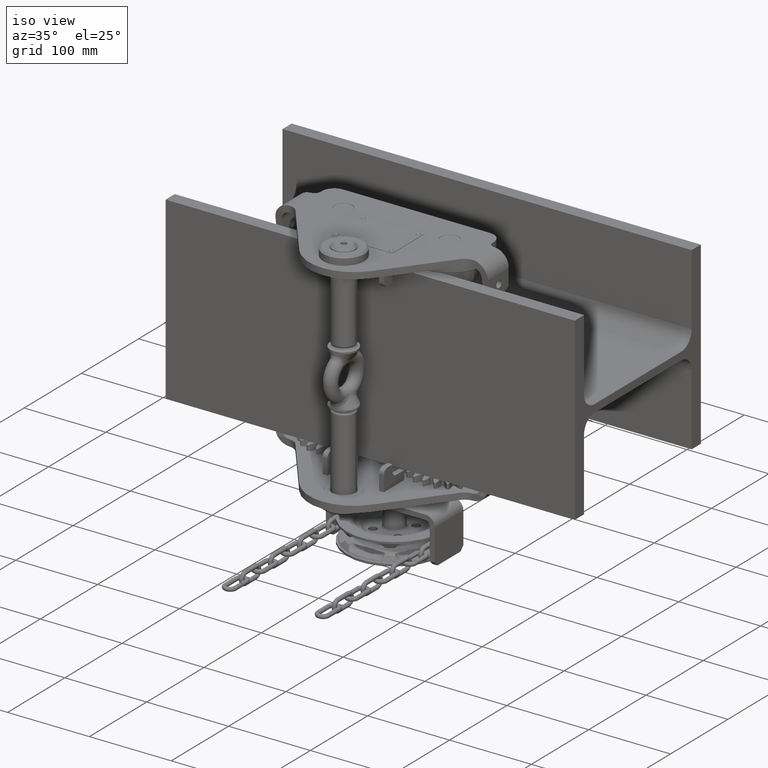
[diagram: clean part render]
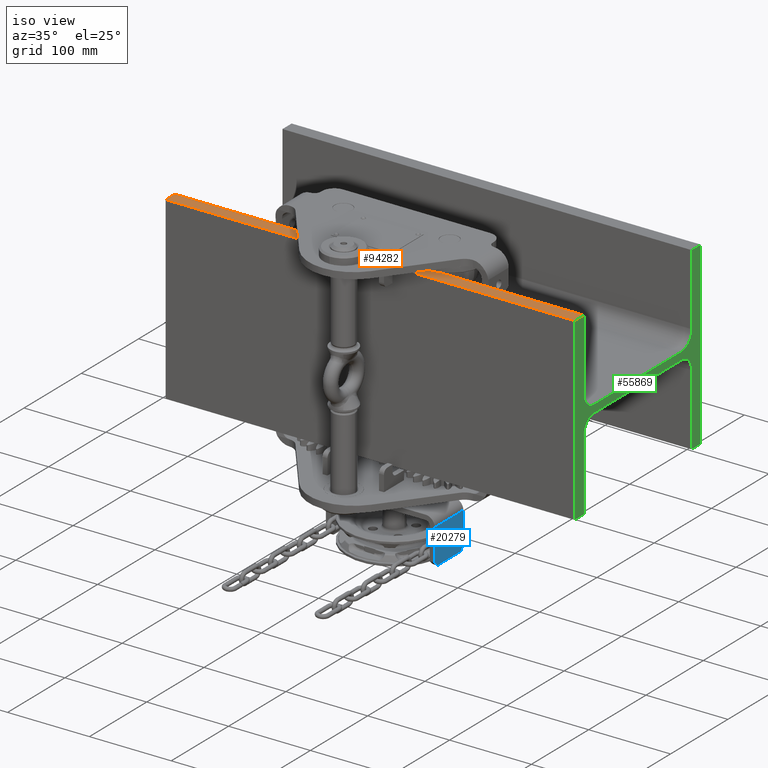
[diagram: same view with three faces highlighted in distinct colors, each labeled with its STEP entity id]
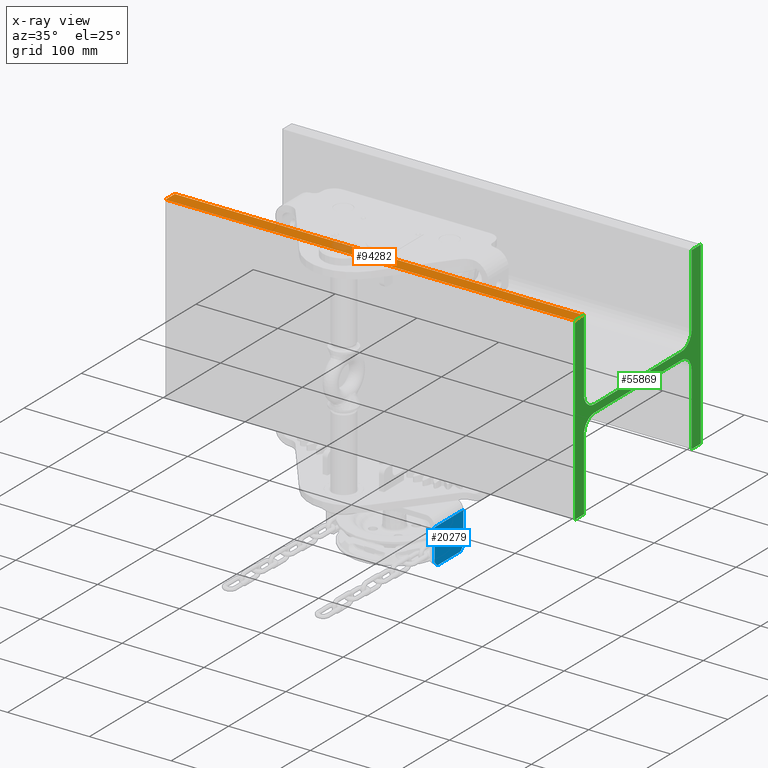
[diagram: x-ray of the same camera — body ghosted, the three highlighted faces saturated]
A machine part, iso view with three faces highlighted in distinct colors.
The next image is the same camera in x-ray (body ghosted, the three faces saturated) — at least one of them is partly hidden behind the body in this view.
Their STEP definitions:

[orange] entity #94282 — the highlighted planar face has unit normal (0, 0, -1).
#2354 = FACE_OUTER_BOUND ( 'NONE', #7073, .T. ) ;
#3253 = LINE ( 'NONE', #16034, #95396 ) ;
#3529 = DIRECTION ( 'NONE',  ( -1.670477943807616000E-049, 1.000000000000000000, 9.102935034118153400E-016 ) ) ;
#3831 = EDGE_CURVE ( 'NONE', #82990, #23652, #24799, .T. ) ;
#5879 = DIRECTION ( 'NONE',  ( -1.670477943807616000E-049, 1.000000000000000000, 9.102935034118149400E-016 ) ) ;
#6229 = CARTESIAN_POINT ( 'NONE',  ( -250.0000000000001100, -109.9999999999999100, 110.0000000000002800 ) ) ;
#6482 = AXIS2_PLACEMENT_3D ( 'NONE', #6229, #59022, #5879 ) ;
#7073 = EDGE_LOOP ( 'NONE', ( #58105, #8410, #90370, #23909 ) ) ;
#8410 = ORIENTED_EDGE ( 'NONE', *, *, #34158, .F. ) ;
#14800 = CARTESIAN_POINT ( 'NONE',  ( -250.0000000000001100, -109.9999999999999100, 110.0000000000002800 ) ) ;
#16034 = CARTESIAN_POINT ( 'NONE',  ( -250.0000000000001100, -93.99999999999985800, 110.0000000000003000 ) ) ;
#18897 = LINE ( 'NONE', #34588, #37061 ) ;
#23652 = VERTEX_POINT ( 'NONE', #37889 ) ;
#23909 = ORIENTED_EDGE ( 'NONE', *, *, #31181, .T. ) ;
#24799 = LINE ( 'NONE', #14800, #84147 ) ;
#31181 = EDGE_CURVE ( 'NONE', #82990, #63369, #18897, .T. ) ;
#34158 = EDGE_CURVE ( 'NONE', #23652, #100648, #3253, .T. ) ;
#34262 = VECTOR ( 'NONE', #3529, 1000.000000000000000 ) ;
#34588 = CARTESIAN_POINT ( 'NONE',  ( -250.0000000000001100, -109.9999999999999100, 110.0000000000002800 ) ) ;
#37061 = VECTOR ( 'NONE', #80624, 1000.000000000000000 ) ;
#37889 = CARTESIAN_POINT ( 'NONE',  ( -250.0000000000001100, -93.99999999999985800, 110.0000000000003000 ) ) ;
#45820 = DIRECTION ( 'NONE',  ( 1.000000000000000000, 0.0000000000000000000, 7.703719777548941700E-034 ) ) ;
#49972 = PLANE ( 'NONE',  #6482 ) ;
#50302 = CARTESIAN_POINT ( 'NONE',  ( 250.0000000000000000, -109.9999999999999100, 110.0000000000002800 ) ) ;
#57871 = CARTESIAN_POINT ( 'NONE',  ( 250.0000000000000000, -93.99999999999985800, 110.0000000000003000 ) ) ;
#58105 = ORIENTED_EDGE ( 'NONE', *, *, #79213, .T. ) ;
#59022 = DIRECTION ( 'NONE',  ( 1.925929944387235900E-034, 9.102935034118149400E-016, -1.000000000000000000 ) ) ;
#63369 = VERTEX_POINT ( 'NONE', #50302 ) ;
#68328 = CARTESIAN_POINT ( 'NONE',  ( -250.0000000000001100, -109.9999999999999100, 110.0000000000002800 ) ) ;
#74580 = CARTESIAN_POINT ( 'NONE',  ( 250.0000000000000000, -109.9999999999999100, 110.0000000000002800 ) ) ;
#75410 = LINE ( 'NONE', #74580, #34262 ) ;
#79213 = EDGE_CURVE ( 'NONE', #63369, #100648, #75410, .T. ) ;
#80624 = DIRECTION ( 'NONE',  ( 1.000000000000000000, 0.0000000000000000000, 7.703719777548941700E-034 ) ) ;
#82990 = VERTEX_POINT ( 'NONE', #68328 ) ;
#84147 = VECTOR ( 'NONE', #84226, 1000.000000000000000 ) ;
#84226 = DIRECTION ( 'NONE',  ( -1.670477943807616000E-049, 1.000000000000000000, 9.102935034118153400E-016 ) ) ;
#90370 = ORIENTED_EDGE ( 'NONE', *, *, #3831, .F. ) ;
#94282 = ADVANCED_FACE ( 'NONE', ( #2354 ), #49972, .F. ) ;
#95396 = VECTOR ( 'NONE', #45820, 1000.000000000000000 ) ;
#100648 = VERTEX_POINT ( 'NONE', #57871 ) ;

[blue] entity #20279 — the highlighted planar face has unit normal (1, 0, -0).
#1966 = VERTEX_POINT ( 'NONE', #39297 ) ;
#3311 = VERTEX_POINT ( 'NONE', #97656 ) ;
#4059 = VECTOR ( 'NONE', #80935, 1000.000000000000000 ) ;
#7748 = DIRECTION ( 'NONE',  ( -4.523521226924581600E-016, 0.7071067811865435800, 0.7071067811865515700 ) ) ;
#7826 = LINE ( 'NONE', #25299, #67192 ) ;
#11939 = EDGE_CURVE ( 'NONE', #3311, #95871, #55763, .T. ) ;
#14724 = DIRECTION ( 'NONE',  ( -1.929447615889290000E-016, 1.786248944720775300E-016, -1.000000000000000000 ) ) ;
#15395 = CARTESIAN_POINT ( 'NONE',  ( 66.50000000000295600, -42.41999999999984500, -174.0000000000007400 ) ) ;
#15901 = DIRECTION ( 'NONE',  ( -8.326672684688672100E-016, 1.000000000000000000, 1.786248944720776800E-016 ) ) ;
#20279 = ADVANCED_FACE ( 'NONE', ( #74985 ), #78441, .T. ) ;
#22280 = CARTESIAN_POINT ( 'NONE',  ( 66.50000000000299800, -92.41999999999986000, -213.0000000000007100 ) ) ;
#22752 = ORIENTED_EDGE ( 'NONE', *, *, #71632, .T. ) ;
#25165 = CARTESIAN_POINT ( 'NONE',  ( 66.50000000000301300, -111.9199999999998500, -193.5000000000009100 ) ) ;
#25299 = CARTESIAN_POINT ( 'NONE',  ( 66.50000000000295600, -42.41999999999984500, -174.0000000000007400 ) ) ;
#28579 = VECTOR ( 'NONE', #86885, 1000.000000000000100 ) ;
#29119 = EDGE_LOOP ( 'NONE', ( #85764, #22752, #76730, #37434, #56536, #62616 ) ) ;
#30062 = VERTEX_POINT ( 'NONE', #70030 ) ;
#35573 = LINE ( 'NONE', #72133, #4059 ) ;
#37434 = ORIENTED_EDGE ( 'NONE', *, *, #11939, .F. ) ;
#38634 = EDGE_CURVE ( 'NONE', #95871, #1966, #7826, .T. ) ;
#39297 = CARTESIAN_POINT ( 'NONE',  ( 66.50000000000292700, -42.41999999999983800, -213.0000000000006300 ) ) ;
#44528 = VERTEX_POINT ( 'NONE', #77055 ) ;
#46697 = LINE ( 'NONE', #25165, #28579 ) ;
#47015 = VECTOR ( 'NONE', #7748, 1000.000000000000000 ) ;
#47659 = DIRECTION ( 'NONE',  ( -8.326672684688672100E-016, 1.000000000000000000, 1.786248944720776800E-016 ) ) ;
#55763 = LINE ( 'NONE', #93215, #98339 ) ;
#56536 = ORIENTED_EDGE ( 'NONE', *, *, #70128, .T. ) ;
#61589 = LINE ( 'NONE', #69683, #47015 ) ;
#62213 = DIRECTION ( 'NONE',  ( 1.000000000000000000, 8.326672684688672100E-016, -1.929447615889286300E-016 ) ) ;
#62616 = ORIENTED_EDGE ( 'NONE', *, *, #63776, .T. ) ;
#63776 = EDGE_CURVE ( 'NONE', #63922, #44528, #46697, .T. ) ;
#63922 = VERTEX_POINT ( 'NONE', #22280 ) ;
#64597 = VECTOR ( 'NONE', #14724, 1000.000000000000000 ) ;
#67192 = VECTOR ( 'NONE', #95131, 1000.000000000000000 ) ;
#69683 = CARTESIAN_POINT ( 'NONE',  ( 66.50000000000294200, -47.91999999999961100, -218.5000000000004800 ) ) ;
#70030 = CARTESIAN_POINT ( 'NONE',  ( 66.50000000000295600, -47.41999999999987400, -218.0000000000007400 ) ) ;
#70128 = EDGE_CURVE ( 'NONE', #3311, #63922, #95043, .T. ) ;
#71632 = EDGE_CURVE ( 'NONE', #30062, #1966, #61589, .T. ) ;
#72133 = CARTESIAN_POINT ( 'NONE',  ( 66.50000000000298400, -92.41999999999986000, -218.0000000000007400 ) ) ;
#74985 = FACE_OUTER_BOUND ( 'NONE', #29119, .T. ) ;
#76730 = ORIENTED_EDGE ( 'NONE', *, *, #38634, .F. ) ;
#77055 = CARTESIAN_POINT ( 'NONE',  ( 66.50000000000299800, -87.41999999999976000, -218.0000000000007400 ) ) ;
#78441 = PLANE ( 'NONE',  #80203 ) ;
#80203 = AXIS2_PLACEMENT_3D ( 'NONE', #86357, #62213, #47659 ) ;
#80935 = DIRECTION ( 'NONE',  ( -8.326672684688672100E-016, 1.000000000000000000, 1.786248944720776800E-016 ) ) ;
#85764 = ORIENTED_EDGE ( 'NONE', *, *, #87283, .T. ) ;
#86357 = CARTESIAN_POINT ( 'NONE',  ( 66.50000000000299800, -92.41999999999986000, -174.0000000000007400 ) ) ;
#86885 = DIRECTION ( 'NONE',  ( -7.252172213203712100E-016, 0.7071067811865511300, -0.7071067811865439100 ) ) ;
#87283 = EDGE_CURVE ( 'NONE', #44528, #30062, #35573, .T. ) ;
#92684 = CARTESIAN_POINT ( 'NONE',  ( 66.50000000000299800, -92.41999999999986000, -174.0000000000007400 ) ) ;
#93215 = CARTESIAN_POINT ( 'NONE',  ( 66.50000000000299800, -92.41999999999986000, -174.0000000000007400 ) ) ;
#95043 = LINE ( 'NONE', #92684, #64597 ) ;
#95131 = DIRECTION ( 'NONE',  ( -1.929447615889290000E-016, 1.786248944720775300E-016, -1.000000000000000000 ) ) ;
#95871 = VERTEX_POINT ( 'NONE', #15395 ) ;
#97656 = CARTESIAN_POINT ( 'NONE',  ( 66.50000000000299800, -92.41999999999984500, -174.0000000000007700 ) ) ;
#98339 = VECTOR ( 'NONE', #15901, 1000.000000000000000 ) ;

[green] entity #55869 — the highlighted planar face has unit normal (-1, -0, -0).
#64 = DIRECTION ( 'NONE',  ( 3.340955887615240800E-049, 1.000000000000000000, -1.691791710553390200E-015 ) ) ;
#219 = LINE ( 'NONE', #89957, #18430 ) ;
#1604 = VECTOR ( 'NONE', #11147, 1000.000000000000000 ) ;
#2155 = VERTEX_POINT ( 'NONE', #80167 ) ;
#3483 = EDGE_CURVE ( 'NONE', #11011, #5028, #46695, .T. ) ;
#3529 = DIRECTION ( 'NONE',  ( -1.670477943807616000E-049, 1.000000000000000000, 9.102935034118153400E-016 ) ) ;
#4837 = EDGE_LOOP ( 'NONE', ( #87835, #25573, #13679, #30123, #71802, #31819, #27692, #81017, #5660, #27576, #86348, #28432, #98774, #69615, #20528, #43786 ) ) ;
#5028 = VERTEX_POINT ( 'NONE', #25834 ) ;
#5287 = EDGE_CURVE ( 'NONE', #96603, #50557, #89985, .T. ) ;
#5660 = ORIENTED_EDGE ( 'NONE', *, *, #51703, .F. ) ;
#6750 = VECTOR ( 'NONE', #38261, 1000.000000000000000 ) ;
#7076 = VERTEX_POINT ( 'NONE', #81169 ) ;
#7112 = CARTESIAN_POINT ( 'NONE',  ( 250.0000000000000000, -109.9999999999998200, -109.9999999999997300 ) ) ;
#9145 = VECTOR ( 'NONE', #12195, 1000.000000000000000 ) ;
#9988 = AXIS2_PLACEMENT_3D ( 'NONE', #77858, #32183, #39939 ) ;
#11011 = VERTEX_POINT ( 'NONE', #13664 ) ;
#11103 = LINE ( 'NONE', #37758, #19612 ) ;
#11147 = DIRECTION ( 'NONE',  ( 0.0000000000000000000, 1.000000000000000000, 4.293176542341493300E-017 ) ) ;
#11174 = CIRCLE ( 'NONE', #53842, 18.00000000000002500 ) ;
#11844 = DIRECTION ( 'NONE',  ( -1.925929944387235900E-034, -4.293176542341593100E-017, 1.000000000000000000 ) ) ;
#12195 = DIRECTION ( 'NONE',  ( 1.925929944387235900E-034, 4.554710308673295900E-016, -1.000000000000000000 ) ) ;
#13294 = DIRECTION ( 'NONE',  ( 0.0000000000000000000, 1.000000000000000000, 4.293176542341493300E-017 ) ) ;
#13664 = CARTESIAN_POINT ( 'NONE',  ( 250.0000000000000000, -109.9999999999998200, -109.9999999999997300 ) ) ;
#13679 = ORIENTED_EDGE ( 'NONE', *, *, #87911, .T. ) ;
#14651 = LINE ( 'NONE', #29520, #71512 ) ;
#15204 = DIRECTION ( 'NONE',  ( 1.925929944387235900E-034, 2.667384474064545400E-015, -1.000000000000000000 ) ) ;
#16960 = CARTESIAN_POINT ( 'NONE',  ( 250.0000000000000000, -75.99999999999963100, 4.750000000000335700 ) ) ;
#18346 = CARTESIAN_POINT ( 'NONE',  ( 250.0000000000000000, 94.00000000000005700, 110.0000000000003400 ) ) ;
#18430 = VECTOR ( 'NONE', #98070, 1000.000000000000000 ) ;
#19612 = VECTOR ( 'NONE', #53318, 1000.000000000000000 ) ;
#20087 = DIRECTION ( 'NONE',  ( 0.0000000000000000000, 0.0000000000000000000, 1.000000000000000000 ) ) ;
#20528 = ORIENTED_EDGE ( 'NONE', *, *, #23567, .T. ) ;
#23567 = EDGE_CURVE ( 'NONE', #63369, #11011, #39447, .T. ) ;
#23935 = VECTOR ( 'NONE', #89581, 1000.000000000000000 ) ;
#25573 = ORIENTED_EDGE ( 'NONE', *, *, #78447, .T. ) ;
#25834 = CARTESIAN_POINT ( 'NONE',  ( 250.0000000000000000, -93.99999999999981500, -109.9999999999997300 ) ) ;
#26566 = EDGE_CURVE ( 'NONE', #7076, #90749, #35537, .T. ) ;
#26926 = CARTESIAN_POINT ( 'NONE',  ( 250.0000000000000000, -75.99999999999984400, -22.74999999999968700 ) ) ;
#27265 = DIRECTION ( 'NONE',  ( -1.000000000000000000, -2.480507177830958500E-050, -1.925929944387235900E-034 ) ) ;
#27576 = ORIENTED_EDGE ( 'NONE', *, *, #40635, .F. ) ;
#27692 = ORIENTED_EDGE ( 'NONE', *, *, #26566, .T. ) ;
#28367 = EDGE_CURVE ( 'NONE', #33963, #7076, #59421, .T. ) ;
#28432 = ORIENTED_EDGE ( 'NONE', *, *, #91694, .F. ) ;
#29520 = CARTESIAN_POINT ( 'NONE',  ( 250.0000000000000000, -93.99999999999985800, 110.0000000000003000 ) ) ;
#29836 = CARTESIAN_POINT ( 'NONE',  ( 250.0000000000000000, -93.99999999999982900, -22.74999999999969100 ) ) ;
#29854 = CARTESIAN_POINT ( 'NONE',  ( 250.0000000000000000, -75.99999999999963100, 22.75000000000034800 ) ) ;
#30083 = CARTESIAN_POINT ( 'NONE',  ( 250.0000000000000000, 76.00000000000007100, -4.749999999999663400 ) ) ;
#30123 = ORIENTED_EDGE ( 'NONE', *, *, #5287, .F. ) ;
#31819 = ORIENTED_EDGE ( 'NONE', *, *, #28367, .T. ) ;
#32183 = DIRECTION ( 'NONE',  ( 1.000000000000000000, 0.0000000000000000000, 7.703719777548941700E-034 ) ) ;
#32970 = CARTESIAN_POINT ( 'NONE',  ( 250.0000000000000000, 94.00000000000005700, 110.0000000000003400 ) ) ;
#33468 = DIRECTION ( 'NONE',  ( -1.925929944387235900E-034, -1.622250703616490400E-016, 1.000000000000000000 ) ) ;
#33963 = VERTEX_POINT ( 'NONE', #57338 ) ;
#34262 = VECTOR ( 'NONE', #3529, 1000.000000000000000 ) ;
#35537 = LINE ( 'NONE', #59608, #67006 ) ;
#35825 = EDGE_CURVE ( 'NONE', #96603, #33963, #11103, .T. ) ;
#36487 = CARTESIAN_POINT ( 'NONE',  ( 250.0000000000000000, 94.00000000000008500, -22.74999999999963100 ) ) ;
#37758 = CARTESIAN_POINT ( 'NONE',  ( 250.0000000000000000, 94.00000000000008500, -22.74999999999963100 ) ) ;
#38261 = DIRECTION ( 'NONE',  ( 1.670477943807623000E-049, 1.000000000000000000, -8.244299725649890000E-016 ) ) ;
#39134 = CARTESIAN_POINT ( 'NONE',  ( 250.0000000000000000, -75.99999999999984400, -4.749999999999682900 ) ) ;
#39447 = LINE ( 'NONE', #58554, #9145 ) ;
#39939 = DIRECTION ( 'NONE',  ( 0.0000000000000000000, 0.0000000000000000000, -1.000000000000000000 ) ) ;
#40635 = EDGE_CURVE ( 'NONE', #99077, #2155, #11174, .T. ) ;
#42606 = FACE_OUTER_BOUND ( 'NONE', #4837, .T. ) ;
#43069 = DIRECTION ( 'NONE',  ( -1.000000000000000000, -0.0000000000000000000, -7.703719777548941700E-034 ) ) ;
#43786 = ORIENTED_EDGE ( 'NONE', *, *, #3483, .T. ) ;
#44365 = DIRECTION ( 'NONE',  ( 0.0000000000000000000, 0.0000000000000000000, -1.000000000000000000 ) ) ;
#46046 = EDGE_CURVE ( 'NONE', #48571, #90749, #91379, .T. ) ;
#46695 = LINE ( 'NONE', #7112, #6750 ) ;
#47761 = AXIS2_PLACEMENT_3D ( 'NONE', #29854, #52247, #44365 ) ;
#48571 = VERTEX_POINT ( 'NONE', #32970 ) ;
#49515 = LINE ( 'NONE', #97053, #23935 ) ;
#50302 = CARTESIAN_POINT ( 'NONE',  ( 250.0000000000000000, -109.9999999999999100, 110.0000000000002800 ) ) ;
#50557 = VERTEX_POINT ( 'NONE', #30083 ) ;
#51703 = EDGE_CURVE ( 'NONE', #2155, #48571, #49515, .T. ) ;
#52247 = DIRECTION ( 'NONE',  ( 1.000000000000000000, 0.0000000000000000000, 7.703719777548941700E-034 ) ) ;
#53318 = DIRECTION ( 'NONE',  ( 1.925929944387235900E-034, 6.791627250939927600E-016, -1.000000000000000000 ) ) ;
#53611 = LINE ( 'NONE', #98075, #74226 ) ;
#53842 = AXIS2_PLACEMENT_3D ( 'NONE', #54213, #99416, #84779 ) ;
#54213 = CARTESIAN_POINT ( 'NONE',  ( 250.0000000000000000, 76.00000000000004300, 22.75000000000035900 ) ) ;
#55869 = ADVANCED_FACE ( 'NONE', ( #42606 ), #96442, .F. ) ;
#56080 = AXIS2_PLACEMENT_3D ( 'NONE', #95800, #27265, #88986 ) ;
#57338 = CARTESIAN_POINT ( 'NONE',  ( 250.0000000000000000, 94.00000000000014200, -109.9999999999996400 ) ) ;
#57871 = CARTESIAN_POINT ( 'NONE',  ( 250.0000000000000000, -93.99999999999985800, 110.0000000000003000 ) ) ;
#58554 = CARTESIAN_POINT ( 'NONE',  ( 250.0000000000000000, -109.9999999999999100, 110.0000000000002800 ) ) ;
#59421 = LINE ( 'NONE', #69766, #72737 ) ;
#59608 = CARTESIAN_POINT ( 'NONE',  ( 250.0000000000000000, 110.0000000000001600, -109.9999999999996700 ) ) ;
#63369 = VERTEX_POINT ( 'NONE', #50302 ) ;
#63937 = VECTOR ( 'NONE', #33468, 1000.000000000000000 ) ;
#64595 = CIRCLE ( 'NONE', #67183, 18.00000000000000000 ) ;
#67006 = VECTOR ( 'NONE', #11844, 1000.000000000000000 ) ;
#67183 = AXIS2_PLACEMENT_3D ( 'NONE', #26926, #43069, #20087 ) ;
#69439 = CARTESIAN_POINT ( 'NONE',  ( 250.0000000000000000, -93.99999999999963100, 22.75000000000028400 ) ) ;
#69615 = ORIENTED_EDGE ( 'NONE', *, *, #79213, .F. ) ;
#69766 = CARTESIAN_POINT ( 'NONE',  ( 250.0000000000000000, 94.00000000000014200, -109.9999999999996400 ) ) ;
#70051 = CARTESIAN_POINT ( 'NONE',  ( 250.0000000000000000, -93.99999999999981500, -109.9999999999997300 ) ) ;
#71512 = VECTOR ( 'NONE', #15204, 1000.000000000000000 ) ;
#71665 = EDGE_CURVE ( 'NONE', #5028, #76846, #84553, .T. ) ;
#71802 = ORIENTED_EDGE ( 'NONE', *, *, #35825, .T. ) ;
#72737 = VECTOR ( 'NONE', #64, 1000.000000000000000 ) ;
#74226 = VECTOR ( 'NONE', #13294, 1000.000000000000000 ) ;
#74580 = CARTESIAN_POINT ( 'NONE',  ( 250.0000000000000000, -109.9999999999999100, 110.0000000000002800 ) ) ;
#75410 = LINE ( 'NONE', #74580, #34262 ) ;
#76846 = VERTEX_POINT ( 'NONE', #29836 ) ;
#77095 = CIRCLE ( 'NONE', #47761, 18.00000000000001400 ) ;
#77858 = CARTESIAN_POINT ( 'NONE',  ( 250.0000000000000000, 76.00000000000007100, -22.74999999999963800 ) ) ;
#78447 = EDGE_CURVE ( 'NONE', #76846, #81827, #64595, .T. ) ;
#78588 = EDGE_CURVE ( 'NONE', #84169, #99077, #53611, .T. ) ;
#79213 = EDGE_CURVE ( 'NONE', #63369, #100648, #75410, .T. ) ;
#80167 = CARTESIAN_POINT ( 'NONE',  ( 250.0000000000000000, 94.00000000000008500, 22.75000000000035900 ) ) ;
#80230 = CARTESIAN_POINT ( 'NONE',  ( 250.0000000000000000, 110.0000000000001600, 110.0000000000003400 ) ) ;
#81017 = ORIENTED_EDGE ( 'NONE', *, *, #46046, .F. ) ;
#81117 = CARTESIAN_POINT ( 'NONE',  ( 250.0000000000000000, 76.00000000000004300, 4.750000000000324200 ) ) ;
#81169 = CARTESIAN_POINT ( 'NONE',  ( 250.0000000000000000, 110.0000000000001600, -109.9999999999996700 ) ) ;
#81827 = VERTEX_POINT ( 'NONE', #39134 ) ;
#84070 = EDGE_CURVE ( 'NONE', #100648, #91851, #14651, .T. ) ;
#84169 = VERTEX_POINT ( 'NONE', #16960 ) ;
#84553 = LINE ( 'NONE', #70051, #63937 ) ;
#84779 = DIRECTION ( 'NONE',  ( 0.0000000000000000000, 0.0000000000000000000, -1.000000000000000000 ) ) ;
#86348 = ORIENTED_EDGE ( 'NONE', *, *, #78588, .F. ) ;
#87835 = ORIENTED_EDGE ( 'NONE', *, *, #71665, .T. ) ;
#87911 = EDGE_CURVE ( 'NONE', #81827, #50557, #219, .T. ) ;
#88986 = DIRECTION ( 'NONE',  ( -1.925929944387235900E-034, -4.293176542341593100E-017, 1.000000000000000000 ) ) ;
#89581 = DIRECTION ( 'NONE',  ( -1.925929944387235900E-034, -3.610472452587044400E-016, 1.000000000000000000 ) ) ;
#89957 = CARTESIAN_POINT ( 'NONE',  ( 250.0000000000000000, -75.99999999999984400, -4.749999999999682900 ) ) ;
#89985 = CIRCLE ( 'NONE', #9988, 17.99999999999997500 ) ;
#90749 = VERTEX_POINT ( 'NONE', #80230 ) ;
#91379 = LINE ( 'NONE', #18346, #1604 ) ;
#91694 = EDGE_CURVE ( 'NONE', #91851, #84169, #77095, .T. ) ;
#91851 = VERTEX_POINT ( 'NONE', #69439 ) ;
#95800 = CARTESIAN_POINT ( 'NONE',  ( 250.0000000000000000, -75.99999999999984400, -22.74999999999968700 ) ) ;
#96442 = PLANE ( 'NONE',  #56080 ) ;
#96603 = VERTEX_POINT ( 'NONE', #36487 ) ;
#97053 = CARTESIAN_POINT ( 'NONE',  ( 250.0000000000000000, 94.00000000000008500, 22.75000000000035900 ) ) ;
#98070 = DIRECTION ( 'NONE',  ( 0.0000000000000000000, 1.000000000000000000, 4.293176542341493300E-017 ) ) ;
#98075 = CARTESIAN_POINT ( 'NONE',  ( 250.0000000000000000, -75.99999999999963100, 4.750000000000318000 ) ) ;
#98774 = ORIENTED_EDGE ( 'NONE', *, *, #84070, .F. ) ;
#99077 = VERTEX_POINT ( 'NONE', #81117 ) ;
#99416 = DIRECTION ( 'NONE',  ( 1.000000000000000000, 0.0000000000000000000, 7.703719777548941700E-034 ) ) ;
#100648 = VERTEX_POINT ( 'NONE', #57871 ) ;